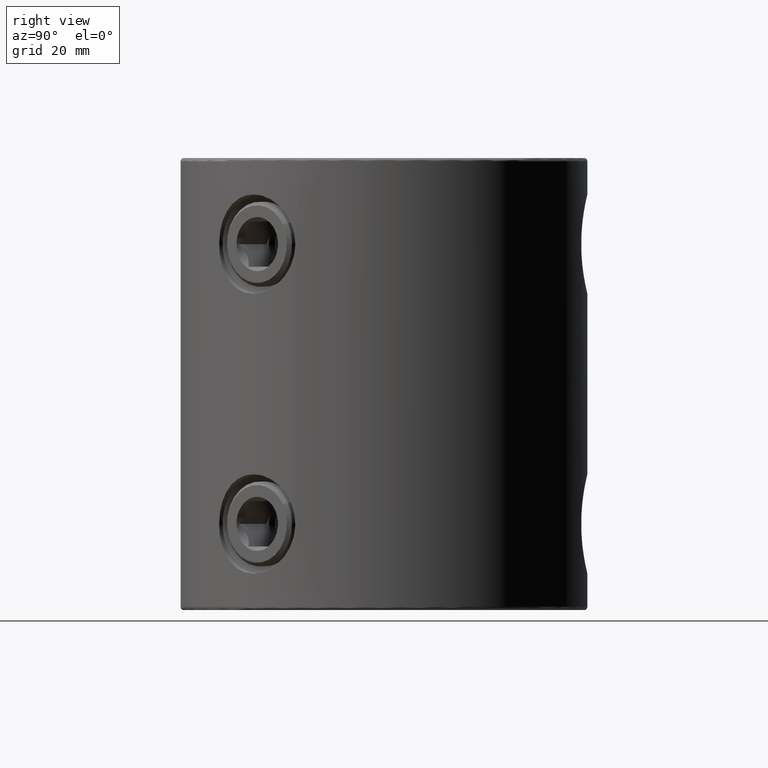
[diagram: clean part render]
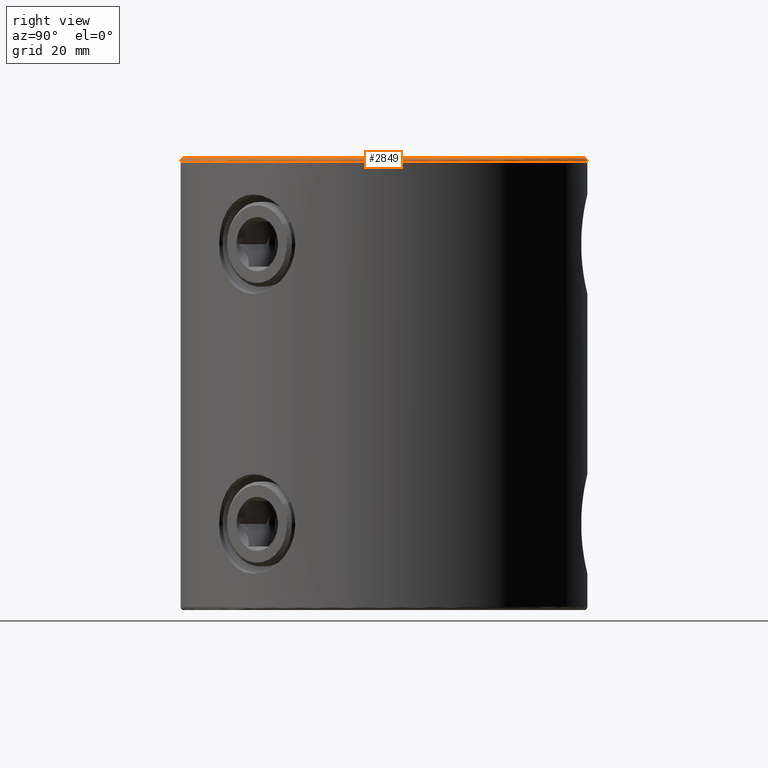
[diagram: same view with one face highlighted and labeled with its STEP entity id]
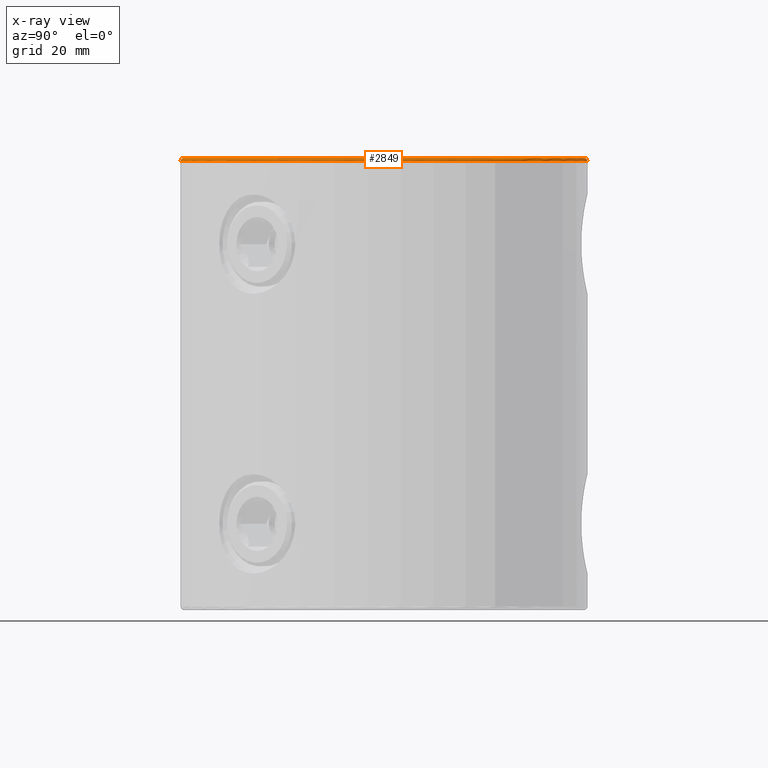
[diagram: x-ray of the same camera — body ghosted, the highlighted face saturated]
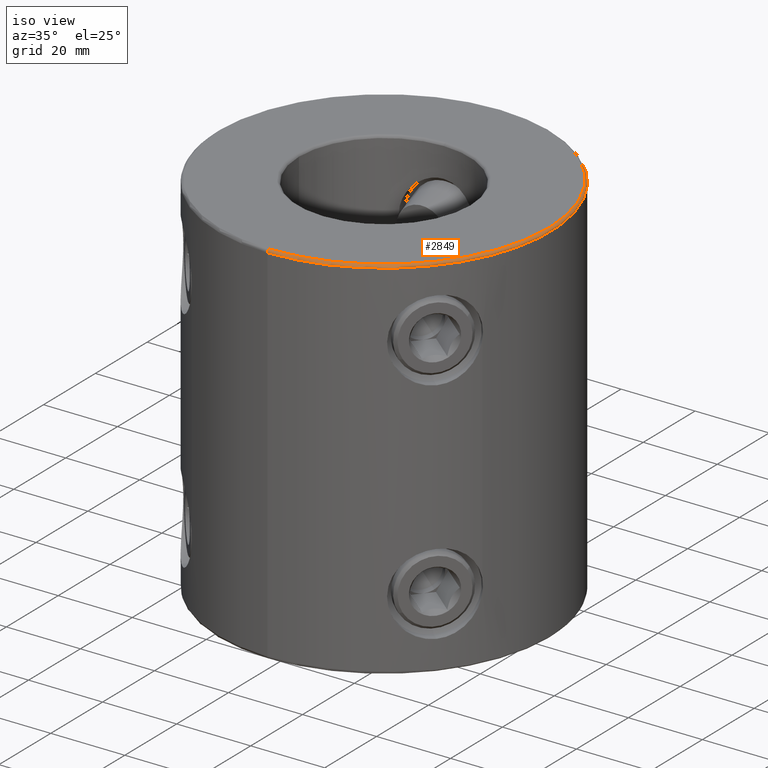
[diagram: same view with one face highlighted and labeled with its STEP entity id]
A machine part, right view. The second image highlights one B-rep face of the part: STEP entity #2849.
The next image is the same camera in x-ray: the body ghosted, the highlighted face saturated — about 0% of this face is hidden behind the body in this view.
A second angle (iso view) of the same face is appended — the face is thin or edge-on in the first view.
In plain terms, the highlighted toroidal blend (fillet) surface has major radius 44.2 mm and minor (blend) radius 0.8 mm.
Its self-contained STEP definition (entity closure, byte-faithful):
#1135=VERTEX_POINT('NONE',#3245);
#1155=VERTEX_POINT('NONE',#3268);
#1351=EDGE_CURVE('NONE',#1155,#2419,#3487,.T.);
#1365=EDGE_CURVE('NONE',#2717,#1155,#3504,.T.);
#1539=EDGE_CURVE('NONE',#2419,#1135,#3694,.T.);
#2173=EDGE_CURVE('NONE',#2717,#1135,#4412,.T.);
#2419=VERTEX_POINT('NONE',#4684);
#2717=VERTEX_POINT('NONE',#5025);
#2849=ADVANCED_FACE('NONE',(#5170),#5171,.T.);
#3245=CARTESIAN_POINT('',(5.5107285922007E-015,-45.0,-0.75));
#3268=CARTESIAN_POINT('',(4.21297175334708E-032,44.4783882181415,-5.96311194867027E-015));
#3487=CIRCLE('',#6056,0.800000000000002);
#3504=CIRCLE('',#6076,44.4783882181415);
#3694=CIRCLE('',#6590,45.0);
#4412=CIRCLE('',#8320,0.800000000000002);
#4684=CARTESIAN_POINT('',(0.0,45.0,-0.75));
#5025=CARTESIAN_POINT('',(5.47879013708607E-015,-44.4783882181415,-5.96311194867027E-015));
#5170=FACE_OUTER_BOUND('',#9865,.T.);
#5171=TOROIDAL_SURFACE('',#9866,44.2,0.800000000000001);
#6056=AXIS2_PLACEMENT_3D('',#10994,#10995,#10996);
#6076=AXIS2_PLACEMENT_3D('',#11025,#11026,#11027);
#6590=AXIS2_PLACEMENT_3D('',#11232,#11233,#11234);
#8320=AXIS2_PLACEMENT_3D('',#12109,#12110,#12111);
#9865=EDGE_LOOP('',(#13014,#13015,#13016,#13017));
#9866=AXIS2_PLACEMENT_3D('',#13018,#13019,#13020);
#10994=CARTESIAN_POINT('',(0.0,44.2,-0.75));
#10995=DIRECTION('',(-1.0,0.0,0.0));
#10996=DIRECTION('',(0.0,-1.0,0.0));
#11025=CARTESIAN_POINT('',(-4.56414044000542E-017,0.0,-5.96311194867027E-015));
#11026=DIRECTION('',(-6.08552058667395E-017,0.0,1.0));
#11027=DIRECTION('',(1.0,0.0,6.08552058667395E-017));
#11232=CARTESIAN_POINT('',(0.0,0.0,-0.75));
#11233=DIRECTION('',(0.0,0.0,-1.0));
#11234=DIRECTION('',(0.0,1.0,0.0));
#12109=CARTESIAN_POINT('',(5.41276008389491E-015,-44.2,-0.75));
#12110=DIRECTION('',(1.0,1.22460635382238E-016,0.0));
#12111=DIRECTION('',(-1.22460635382238E-016,1.0,0.0));
#13014=ORIENTED_EDGE('',*,*,#1365,.F.);
#13015=ORIENTED_EDGE('',*,*,#2173,.T.);
#13016=ORIENTED_EDGE('',*,*,#1539,.F.);
#13017=ORIENTED_EDGE('',*,*,#1351,.F.);
#13018=CARTESIAN_POINT('',(0.0,0.0,-0.75));
#13019=DIRECTION('',(0.0,0.0,-1.0));
#13020=DIRECTION('',(0.0,1.0,0.0));